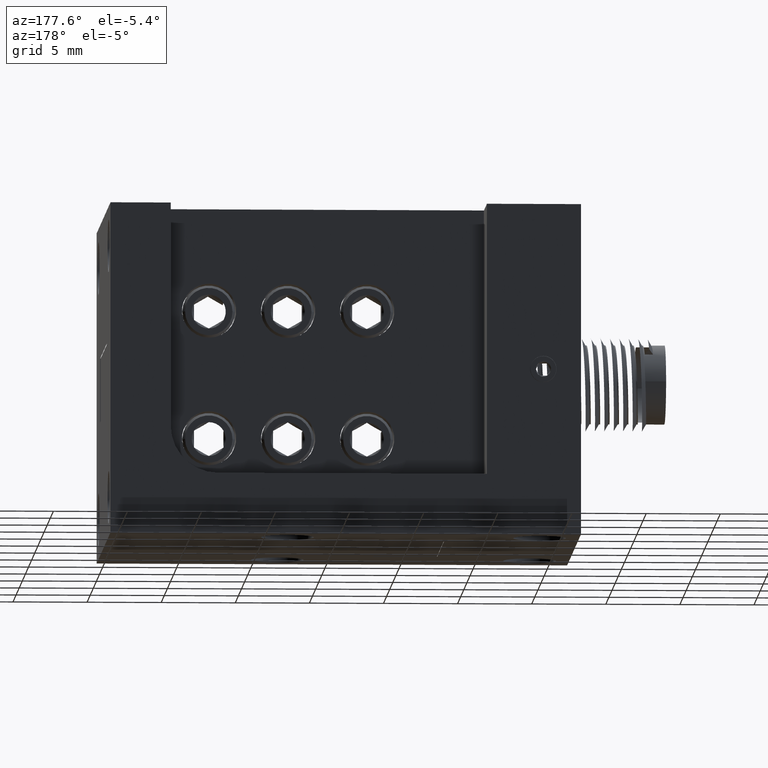
[diagram: clean part render]
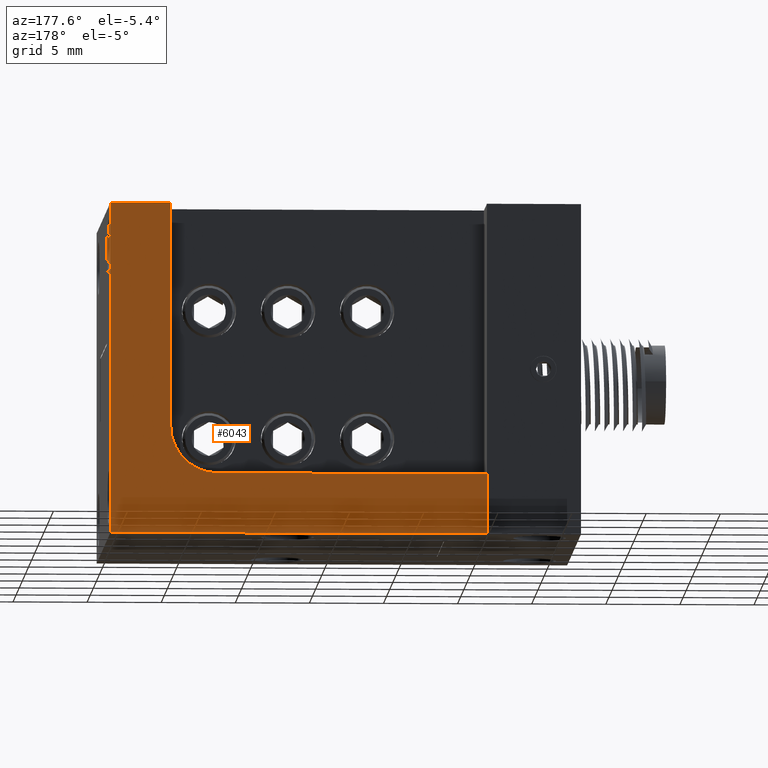
[diagram: same view with one face highlighted and labeled with its STEP entity id]
A machine part, auxiliary view. The second image highlights one B-rep face of the part: STEP entity #6043.
In plain terms, the highlighted planar face has unit normal (0, 1, 0).
Its self-contained STEP definition (entity closure, byte-faithful):
#132 = VECTOR ( 'NONE', #3744, 39.37007874015748100 ) ;
#172 = ORIENTED_EDGE ( 'NONE', *, *, #5295, .T. ) ;
#295 = VERTEX_POINT ( 'NONE', #3064 ) ;
#309 = DIRECTION ( 'NONE',  ( -1.000000000000000000, 0.0000000000000000000, 1.365923996832131600E-016 ) ) ;
#423 = EDGE_LOOP ( 'NONE', ( #6719, #761, #4334, #172, #3407, #2997, #1347 ) ) ;
#438 = DIRECTION ( 'NONE',  ( -9.561467977824920300E-016, 0.0000000000000000000, 1.000000000000000000 ) ) ;
#597 = AXIS2_PLACEMENT_3D ( 'NONE', #2735, #3811, #7440 ) ;
#699 = LINE ( 'NONE', #5434, #1699 ) ;
#761 = ORIENTED_EDGE ( 'NONE', *, *, #2992, .T. ) ;
#1044 = CARTESIAN_POINT ( 'NONE',  ( 0.04433976793266600900, 0.08855613254086974800, -0.006774761932180658000 ) ) ;
#1218 = VECTOR ( 'NONE', #309, 39.37007874015748100 ) ;
#1347 = ORIENTED_EDGE ( 'NONE', *, *, #2864, .T. ) ;
#1589 = CARTESIAN_POINT ( 'NONE',  ( -0.08066023206733399800, 0.08855613254086974800, -0.006774761932180623300 ) ) ;
#1677 = LINE ( 'NONE', #7274, #132 ) ;
#1699 = VECTOR ( 'NONE', #5850, 39.37007874015748100 ) ;
#1742 = LINE ( 'NONE', #2154, #2645 ) ;
#1761 = CARTESIAN_POINT ( 'NONE',  ( -0.08066023206733399800, 0.08855613254086974800, -0.1317747619321806300 ) ) ;
#1993 = CARTESIAN_POINT ( 'NONE',  ( 0.04433976793266600900, 0.08855613254086974800, -0.1317747619321806300 ) ) ;
#2079 = DIRECTION ( 'NONE',  ( -0.0000000000000000000, -1.000000000000000000, -0.0000000000000000000 ) ) ;
#2154 = CARTESIAN_POINT ( 'NONE',  ( 0.2043397679326660100, 0.08855613254086974800, 0.5882252380678194600 ) ) ;
#2393 = EDGE_CURVE ( 'NONE', #2811, #295, #2700, .T. ) ;
#2609 = CARTESIAN_POINT ( 'NONE',  ( 0.2043397679326660100, 0.08855613254086974800, 0.5882252380678194600 ) ) ;
#2645 = VECTOR ( 'NONE', #3450, 39.37007874015748100 ) ;
#2700 = LINE ( 'NONE', #1993, #7587 ) ;
#2735 = CARTESIAN_POINT ( 'NONE',  ( -0.2956602320673341100, 0.08855613254086974800, 0.1482252380678194000 ) ) ;
#2811 = VERTEX_POINT ( 'NONE', #1761 ) ;
#2864 = EDGE_CURVE ( 'NONE', #5626, #295, #699, .T. ) ;
#2992 = EDGE_CURVE ( 'NONE', #2811, #7306, #4433, .T. ) ;
#2997 = ORIENTED_EDGE ( 'NONE', *, *, #5710, .T. ) ;
#3064 = CARTESIAN_POINT ( 'NONE',  ( -0.7956602320673339400, 0.08855613254086974800, -0.1317747619321805200 ) ) ;
#3195 = VECTOR ( 'NONE', #4254, 39.37007874015748100 ) ;
#3289 = CARTESIAN_POINT ( 'NONE',  ( 0.2043397679326660100, 0.08855613254086974800, -0.2917747619321806000 ) ) ;
#3407 = ORIENTED_EDGE ( 'NONE', *, *, #6786, .T. ) ;
#3450 = DIRECTION ( 'NONE',  ( 0.0000000000000000000, 0.0000000000000000000, -1.000000000000000000 ) ) ;
#3514 = VERTEX_POINT ( 'NONE', #3289 ) ;
#3744 = DIRECTION ( 'NONE',  ( 1.000000000000000000, -0.0000000000000000000, -1.365923996832131600E-016 ) ) ;
#3811 = DIRECTION ( 'NONE',  ( 0.0000000000000000000, 1.000000000000000000, 0.0000000000000000000 ) ) ;
#4254 = DIRECTION ( 'NONE',  ( 0.0000000000000000000, 0.0000000000000000000, -1.000000000000000000 ) ) ;
#4299 = LINE ( 'NONE', #4856, #1218 ) ;
#4334 = ORIENTED_EDGE ( 'NONE', *, *, #7087, .F. ) ;
#4433 = CIRCLE ( 'NONE', #7450, 0.1250000000000000000 ) ;
#4511 = PLANE ( 'NONE',  #597 ) ;
#4824 = CARTESIAN_POINT ( 'NONE',  ( 0.04433976793266600900, 0.08855613254086974800, 0.5882252380678194600 ) ) ;
#4856 = CARTESIAN_POINT ( 'NONE',  ( 0.2043397679326660100, 0.08855613254086974800, -0.2917747619321806000 ) ) ;
#4918 = LINE ( 'NONE', #4824, #3195 ) ;
#5122 = FACE_OUTER_BOUND ( 'NONE', #423, .T. ) ;
#5295 = EDGE_CURVE ( 'NONE', #6767, #7156, #1677, .T. ) ;
#5434 = CARTESIAN_POINT ( 'NONE',  ( -0.7956602320673339400, 0.08855613254086974800, 0.5882252380678195700 ) ) ;
#5626 = VERTEX_POINT ( 'NONE', #6417 ) ;
#5710 = EDGE_CURVE ( 'NONE', #3514, #5626, #4299, .T. ) ;
#5850 = DIRECTION ( 'NONE',  ( -0.0000000000000000000, -0.0000000000000000000, 1.000000000000000000 ) ) ;
#6043 = ADVANCED_FACE ( 'NONE', ( #5122 ), #4511, .T. ) ;
#6064 = DIRECTION ( 'NONE',  ( -1.000000000000000000, 0.0000000000000000000, 1.219574997171546100E-016 ) ) ;
#6417 = CARTESIAN_POINT ( 'NONE',  ( -0.7956602320673339400, 0.08855613254086974800, -0.2917747619321804900 ) ) ;
#6719 = ORIENTED_EDGE ( 'NONE', *, *, #2393, .F. ) ;
#6767 = VERTEX_POINT ( 'NONE', #6865 ) ;
#6786 = EDGE_CURVE ( 'NONE', #7156, #3514, #1742, .T. ) ;
#6865 = CARTESIAN_POINT ( 'NONE',  ( 0.04433976793266600900, 0.08855613254086974800, 0.5882252380678194600 ) ) ;
#7087 = EDGE_CURVE ( 'NONE', #6767, #7306, #4918, .T. ) ;
#7156 = VERTEX_POINT ( 'NONE', #2609 ) ;
#7274 = CARTESIAN_POINT ( 'NONE',  ( 0.2043397679326660100, 0.08855613254086974800, 0.5882252380678194600 ) ) ;
#7306 = VERTEX_POINT ( 'NONE', #1044 ) ;
#7440 = DIRECTION ( 'NONE',  ( 0.0000000000000000000, -0.0000000000000000000, 1.000000000000000000 ) ) ;
#7450 = AXIS2_PLACEMENT_3D ( 'NONE', #1589, #2079, #438 ) ;
#7587 = VECTOR ( 'NONE', #6064, 39.37007874015748100 ) ;